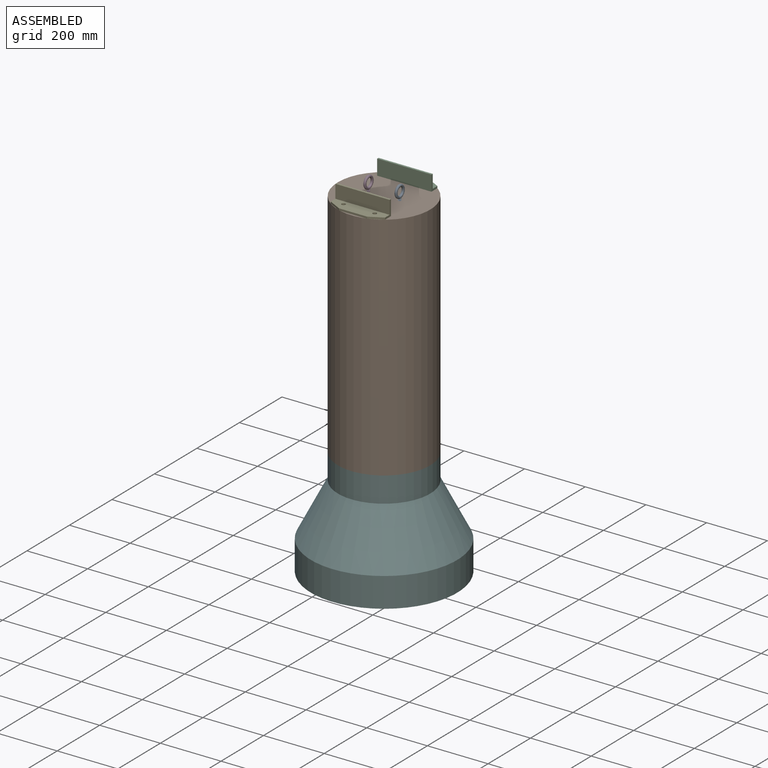
[diagram: assembled view]
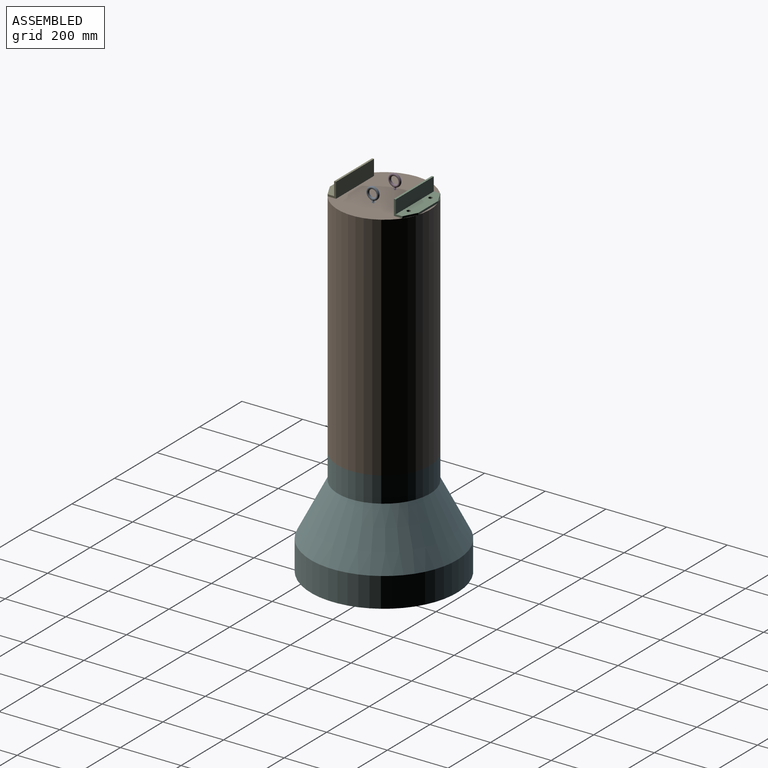
[diagram: assembled view, second angle]
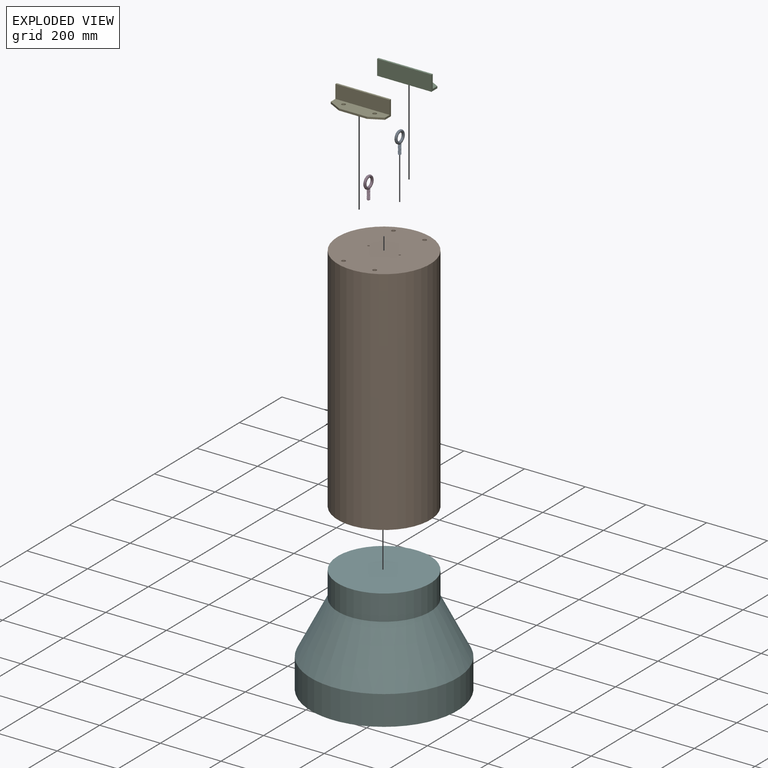
[diagram: exploded view]
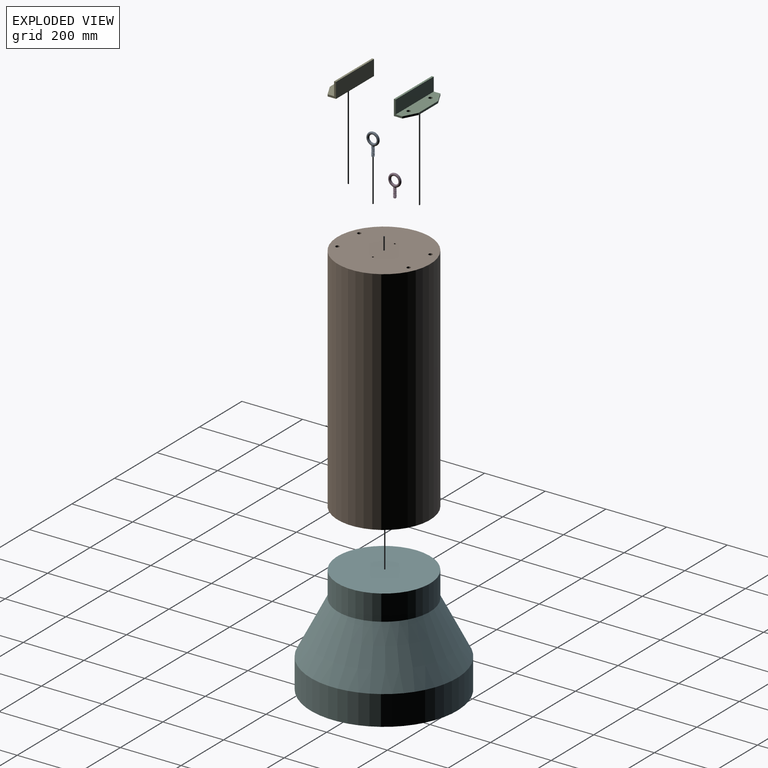
[diagram: exploded view, second angle]
ASSEMBLY  parts=6 mates=8
PART A: 16 faces, bbox 46.1x77.2x10.3 mm
  f0: cylinder r=12.83mm len=25.65mm, axis (0,0,1), area 164.6mm2, adj f3
  f1: cone r=3.56mm half-angle=45deg, axis (0,1,0), area 24.4mm2, adj f2,f11,f12,f13,f14,f15
  f2: cylinder r=4.76mm len=30.55mm, axis (0,1,0), area 114.3mm2, adj f1,f5,f10,f11,f12,f13
  f3: torus R=16.87mm, axis (0,0,-1), area 2496.4mm2, adj f0,f7,f8,f9,f10
  f4: cone r=4.17mm half-angle=8.1deg, axis (0,-1,0), area 16.6mm2, adj f6,f9
  f5: cone r=4.17mm half-angle=8.1deg, axis (0,-1,0), area 16.8mm2, adj f2,f6,f8
  f6: plane 10.14x10.14mm, normal (0,-1,0), area 14.2mm2, adj f4,f5,f7,f10,f11,f13,f14
  f7: bspline ~6x2.21mm, area 10.9mm2, adj f3,f6,f8,f9
  f8: bspline ~9.86x4.28mm, area 13.9mm2, adj f3,f5,f7,f10
  f9: bspline ~9.86x4.28mm, area 13.9mm2, adj f3,f4,f7,f10
  f10: bspline ~6x2.21mm, area 10.9mm2, adj f2,f3,f6,f8,f9
  f11: bspline ~33.39x9.7mm, area 593.6mm2, adj f1,f2,f6,f14
  f12: bspline ~9.7x9.7mm, area 4.5mm2, adj f1,f2
  f13: bspline ~32.59x9.7mm, area 625.6mm2, adj f1,f2,f6,f14
  f14: cylinder r=3.73mm len=31.58mm, axis (0,-1,0), area 94mm2, adj f1,f6,f11,f13
  f15: plane 7.12x7.12mm, normal (0,-1,0), area 39.8mm2, adj f1
PART B: 15 faces, bbox 304.8x304.8x762 mm
  f0: cylinder r=152.4mm len=762mm, axis (0,0,-1), area 729658.8mm2, adj f1,f2
  f1: plane 304.8x304.8mm, normal (0,0,1), area 72395.8mm2, adj f0,f4,f6,f8,f10,f12,f14
  f2: plane 304.8x304.8mm, normal (0,0,-1), area 72965.9mm2, adj f0
  f3: cone r=0mm half-angle=59deg, axis (0,0,1), area 147.8mm2, adj f4
  f4: cylinder r=6.35mm len=152.4mm, axis (0,0,1), area 6080.5mm2, adj f1,f3
  f5: cone r=0mm half-angle=59deg, axis (0,0,1), area 147.8mm2, adj f6
  f6: cylinder r=6.35mm len=152.4mm, axis (0,0,1), area 6080.5mm2, adj f1,f5
  f7: cone r=0mm half-angle=59deg, axis (0,0,1), area 147.8mm2, adj f8
  f8: cylinder r=6.35mm len=152.4mm, axis (0,0,1), area 6080.5mm2, adj f1,f7
  f9: cone r=0mm half-angle=59deg, axis (0,0,1), area 147.8mm2, adj f10
  f10: cylinder r=6.35mm len=152.4mm, axis (0,0,1), area 6080.5mm2, adj f1,f9
  f11: cone r=0mm half-angle=59deg, axis (0,0,1), area 36.9mm2, adj f12
  f12: cylinder r=3.17mm len=38.1mm, axis (0,0,1), area 760.1mm2, adj f1,f11
  f13: cone r=0mm half-angle=59deg, axis (0,0,1), area 36.9mm2, adj f14
  f14: cylinder r=3.17mm len=38.1mm, axis (0,0,1), area 760.1mm2, adj f1,f13
PART C: 12 faces, bbox 50.8x178.9x50.8 mm
  f0: plane 178.87x6.35mm, normal (0,0,1), area 1135.8mm2, adj f1,f5,f6,f7
  f1: plane 178.87x50.8mm, normal (-1,0,0), area 9086.4mm2, adj f0,f2,f6,f7
  f2: plane 178.87x50.8mm, normal (0,0,-1), area 7846mm2, adj f1,f3,f6,f7,f8,f9,f10,f11
  f3: plane 92.51x6.35mm, normal (1,0,0), area 587.4mm2, adj f2,f4,f10,f11
  f4: plane 178.87x44.45mm, normal (0,0,1), area 6710.2mm2, adj f3,f5,f6,f7,f8,f9,f10,f11
  f5: plane 178.87x44.45mm, normal (1,0,0), area 7950.6mm2, adj f0,f4,f6,f7
  f6: plane 50.8x27.94mm, normal (0,-1,0), area 459.7mm2, adj f0,f1,f2,f4,f5,f10
  f7: plane 50.8x27.94mm, normal (0,1,0), area 459.7mm2, adj f0,f1,f2,f4,f5,f11
  f8: cylinder r=6.35mm len=12.7mm, axis (0,0,1), area 253.4mm2, adj f2,f4
  f9: cylinder r=6.35mm len=12.7mm, axis (0,0,1), area 253.4mm2, adj f2,f4
  f10: plane 43.18x22.86mm, normal (0.88,-0.47,0), area 310.2mm2, adj f2,f3,f4,f6
  f11: plane 43.18x22.86mm, normal (0.88,0.47,0), area 310.2mm2, adj f2,f3,f4,f7
PART D: same geometry as A
PART E: same geometry as C
PART F: 5 faces, bbox 482.6x482.6x355.6 mm
  f0: plane 304.8x304.8mm, normal (0,0,1), area 72965.9mm2, adj f1
  f1: cylinder r=152.4mm len=304.8mm, axis (0,0,1), area 80497.4mm2, adj f0,f2
  f2: cone r=152.4mm half-angle=27.1deg, axis (0,0,-1), area 241617.4mm2, adj f1,f3
  f3: cylinder r=241.3mm len=482.6mm, axis (0,0,1), area 147952.4mm2, adj f2,f4
  f4: plane 482.6x482.6mm, normal (0,0,-1), area 182921.4mm2, adj f3
PLACE A rot(axis=(0.58,0.58,0.58),120deg) t=(-827.04,-406.13,712.28)mm
PLACE B rot(axis=(0,0,1),180deg) t=(3619.66,-554.84,-77.11)mm
PLACE C rot(axis=(0,0,1),90deg) t=(-1216.81,-2282.76,870.26)mm
PLACE D rot(axis=(0.58,0.58,0.58),120deg) t=(-929.71,-406.13,712.28)mm
PLACE E rot(axis=(0,0,-1),90deg) t=(-539.93,1470.5,870.26)mm
PLACE F rot(axis=(0,0,1),180deg) t=(4604.96,-406.13,-270.33)mm
MATE fastened B.f11 <-> D.f1  axis (0,0,1) through (-929.71,-406.13,684.89)mm
MATE fastened F.f1 <-> B.f0  axis (0,0,1) through (-878.37,-406.13,-77.11)mm
MATE planar E.f2 <-> B.f0  axis (0,0,-1) through (-878.37,-524.65,684.89)mm
MATE revolute B.f7 <-> C.f8  axis (0,0,1) through (-827.04,-288.66,684.89)mm
MATE fastened B.f13 <-> A.f1  axis (0,0,1) through (-827.04,-406.13,684.89)mm
MATE revolute E.f9 <-> B.f3  axis (0,0,-1) through (-827.04,-523.61,684.89)mm
MATE revolute E.f8 <-> B.f9  axis (0,0,-1) through (-929.71,-523.61,684.89)mm
MATE revolute C.f9 <-> B.f5  axis (0,0,-1) through (-929.71,-288.66,684.89)mm
